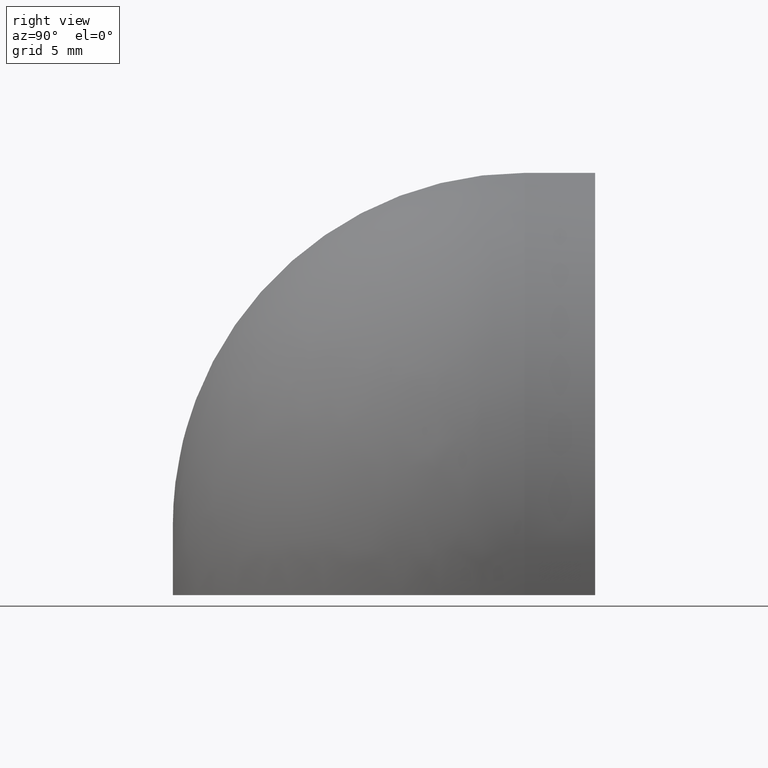
[diagram: clean part render]
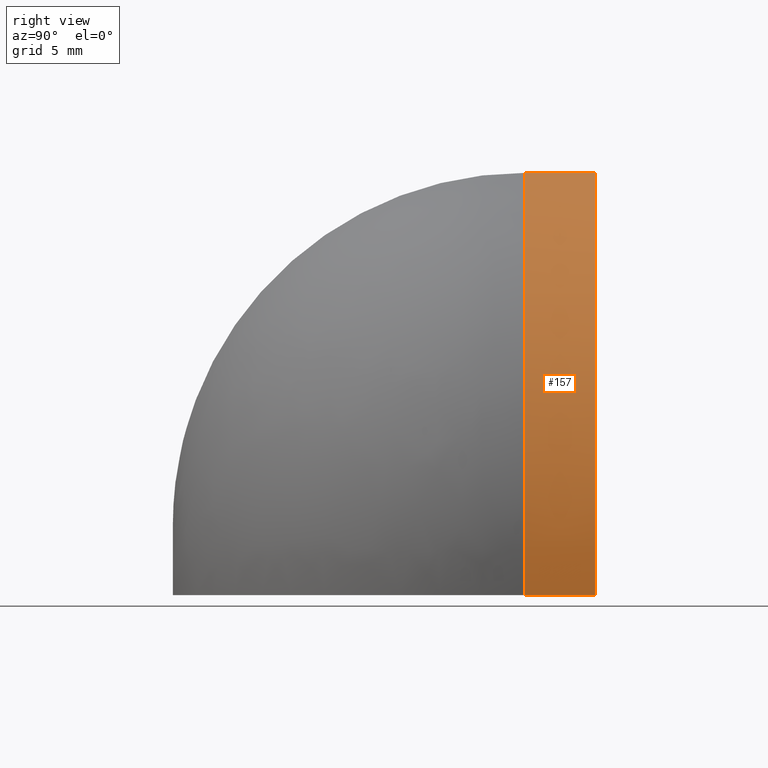
[diagram: same view with one face highlighted and labeled with its STEP entity id]
A machine part, right view. The second image highlights one B-rep face of the part: STEP entity #157.
In plain terms, the highlighted conical surface has half-angle 0.062 deg.
Its self-contained STEP definition (entity closure, byte-faithful):
#26=LINE('',#294,#37);
#27=LINE('',#295,#38);
#37=VECTOR('',#219,5.00000292033832);
#38=VECTOR('',#220,5.00000292033832);
#43=CONICAL_SURFACE('',#176,29.9972911578758,0.0620812910434206);
#50=FACE_OUTER_BOUND('',#59,.T.);
#59=EDGE_LOOP('',(#129,#130,#131,#132));
#63=CIRCLE('',#163,29.9999999662594);
#71=CIRCLE('',#175,29.9945823494923);
#72=VERTEX_POINT('',#242);
#74=VERTEX_POINT('',#245);
#84=VERTEX_POINT('',#288);
#85=VERTEX_POINT('',#290);
#87=EDGE_CURVE('',#72,#74,#63,.T.);
#103=EDGE_CURVE('',#84,#85,#71,.T.);
#104=EDGE_CURVE('',#84,#72,#26,.T.);
#105=EDGE_CURVE('',#74,#85,#27,.T.);
#129=ORIENTED_EDGE('',*,*,#104,.F.);
#130=ORIENTED_EDGE('',*,*,#103,.T.);
#131=ORIENTED_EDGE('',*,*,#105,.F.);
#132=ORIENTED_EDGE('',*,*,#87,.F.);
#157=ADVANCED_FACE('',(#50),#43,.T.);
#163=AXIS2_PLACEMENT_3D('',#246,#183,#184);
#175=AXIS2_PLACEMENT_3D('',#292,#215,#216);
#176=AXIS2_PLACEMENT_3D('',#293,#217,#218);
#183=DIRECTION('center_axis',(0.,-1.,0.));
#184=DIRECTION('ref_axis',(1.,0.,-1.48029736783175E-16));
#215=DIRECTION('center_axis',(0.,-1.,0.));
#216=DIRECTION('ref_axis',(1.,0.,4.44169421673158E-16));
#217=DIRECTION('center_axis',(0.,-1.,0.));
#218=DIRECTION('ref_axis',(1.,0.,0.));
#219=DIRECTION('',(0.00108352272058328,-0.999999412989085,0.));
#220=DIRECTION('',(-6.63466315782876E-20,0.999999412989085,-0.00108352272058328));
#242=CARTESIAN_POINT('',(29.9999999662594,-4.99999998528203,0.));
#245=CARTESIAN_POINT('',(1.83697019665502E-15,-4.99999998528203,29.9999999662594));
#246=CARTESIAN_POINT('Origin',(4.44089209850063E-15,-4.99999998528203,4.44089209850063E-15));
#288=CARTESIAN_POINT('',(29.9945823494923,-5.55111512312578E-16,0.));
#290=CARTESIAN_POINT('',(1.83663846330337E-15,-5.55111512312578E-16,29.9945823494923));
#292=CARTESIAN_POINT('Origin',(-8.88178419700125E-15,-5.55111512312578E-16,
-1.33226762955019E-14));
#293=CARTESIAN_POINT('Origin',(0.,-2.49999999264101,0.));
#294=CARTESIAN_POINT('',(29.9945823494923,-5.55111512312578E-16,0.));
#295=CARTESIAN_POINT('',(1.83663846330337E-15,-5.55111512312578E-16,29.9945823494923));